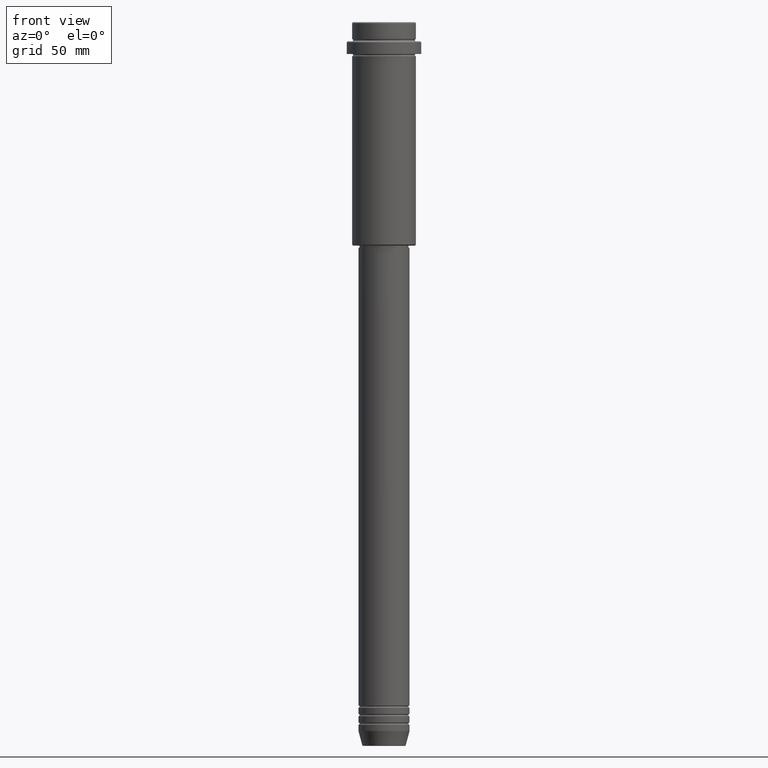
[diagram: clean part render]
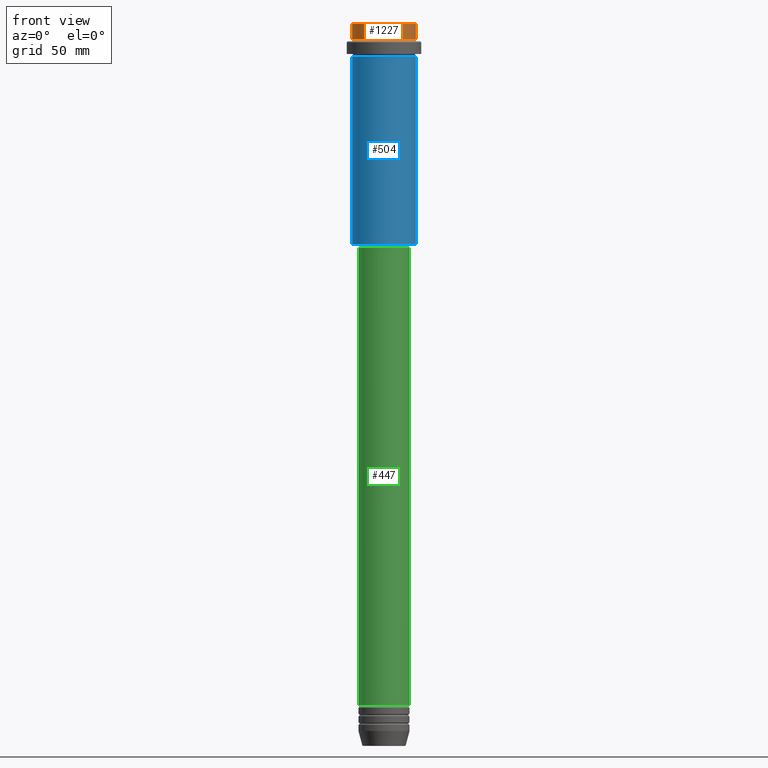
[diagram: same view with three faces highlighted in distinct colors, each labeled with its STEP entity id]
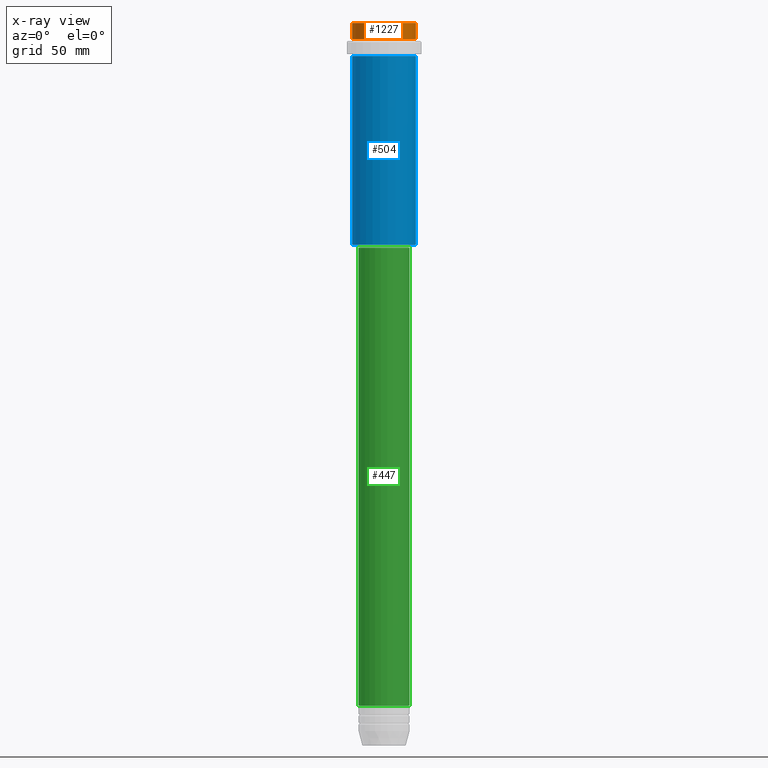
[diagram: x-ray of the same camera — body ghosted, the three highlighted faces saturated]
A machine part, front view with three faces highlighted in distinct colors.
The next image is the same camera in x-ray (body ghosted, the three faces saturated) — at least one of them is partly hidden behind the body in this view.
Their STEP definitions:

[orange] entity #1227 — the highlighted cylindrical surface (edge-blend (fillet) strip) has radius 15 mm, axis along (-0, -0, 1).
#3 = DIRECTION ( 'NONE',  ( 1.000000000000000000, 0.000000000000000000, 0.000000000000000000 ) ) ;
#16 = EDGE_CURVE ( 'NONE', #390, #327, #1345, .T. ) ;
#25 = VERTEX_POINT ( 'NONE', #153 ) ;
#126 = DIRECTION ( 'NONE',  ( 0.000000000000000000, 0.000000000000000000, -1.000000000000000000 ) ) ;
#136 = VECTOR ( 'NONE', #1139, 1000.000000000000000 ) ;
#153 = CARTESIAN_POINT ( 'NONE',  ( -15.00000000000000000, 1.836970198721029589E-15, -0.5000000000000107692 ) ) ;
#169 = CARTESIAN_POINT ( 'NONE',  ( 0.000000000000000000, 0.000000000000000000, -7.999999999999998224 ) ) ;
#216 = VECTOR ( 'NONE', #1366, 1000.000000000000000 ) ;
#238 = AXIS2_PLACEMENT_3D ( 'NONE', #472, #126, #587 ) ;
#327 = VERTEX_POINT ( 'NONE', #331 ) ;
#331 = CARTESIAN_POINT ( 'NONE',  ( 15.00000000000000000, 0.000000000000000000, -0.5000000000000107692 ) ) ;
#365 = CARTESIAN_POINT ( 'NONE',  ( 15.00000000000000000, 0.000000000000000000, 0.000000000000000000 ) ) ;
#390 = VERTEX_POINT ( 'NONE', #781 ) ;
#423 = CARTESIAN_POINT ( 'NONE',  ( 0.000000000000000000, 0.000000000000000000, 0.000000000000000000 ) ) ;
#472 = CARTESIAN_POINT ( 'NONE',  ( 0.000000000000000000, 0.000000000000000000, -0.5000000000000107692 ) ) ;
#515 = VERTEX_POINT ( 'NONE', #579 ) ;
#520 = DIRECTION ( 'NONE',  ( -0.000000000000000000, -0.000000000000000000, 1.000000000000000000 ) ) ;
#530 = ORIENTED_EDGE ( 'NONE', *, *, #16, .T. ) ;
#544 = FACE_OUTER_BOUND ( 'NONE', #1337, .T. ) ;
#557 = AXIS2_PLACEMENT_3D ( 'NONE', #169, #520, #622 ) ;
#579 = CARTESIAN_POINT ( 'NONE',  ( -15.00000000000000000, 1.836970198721029589E-15, -7.999999999999998224 ) ) ;
#587 = DIRECTION ( 'NONE',  ( 1.000000000000000000, 0.000000000000000000, 0.000000000000000000 ) ) ;
#622 = DIRECTION ( 'NONE',  ( 1.000000000000000000, 0.000000000000000000, 0.000000000000000000 ) ) ;
#655 = EDGE_CURVE ( 'NONE', #515, #25, #1256, .T. ) ;
#657 = ORIENTED_EDGE ( 'NONE', *, *, #892, .T. ) ;
#679 = EDGE_CURVE ( 'NONE', #515, #390, #923, .T. ) ;
#682 = ORIENTED_EDGE ( 'NONE', *, *, #679, .T. ) ;
#781 = CARTESIAN_POINT ( 'NONE',  ( 15.00000000000000000, 0.000000000000000000, -7.999999999999998224 ) ) ;
#856 = CIRCLE ( 'NONE', #238, 15.00000000000000000 ) ;
#892 = EDGE_CURVE ( 'NONE', #327, #25, #856, .T. ) ;
#923 = CIRCLE ( 'NONE', #557, 15.00000000000000000 ) ;
#926 = AXIS2_PLACEMENT_3D ( 'NONE', #423, #1072, #3 ) ;
#934 = CARTESIAN_POINT ( 'NONE',  ( -15.00000000000000000, 1.836970198721029589E-15, 0.000000000000000000 ) ) ;
#975 = CYLINDRICAL_SURFACE ( 'NONE', #926, 15.00000000000000000 ) ;
#1072 = DIRECTION ( 'NONE',  ( -0.000000000000000000, -0.000000000000000000, 1.000000000000000000 ) ) ;
#1139 = DIRECTION ( 'NONE',  ( -0.000000000000000000, -0.000000000000000000, 1.000000000000000000 ) ) ;
#1207 = ORIENTED_EDGE ( 'NONE', *, *, #655, .F. ) ;
#1227 = ADVANCED_FACE ( 'NONE', ( #544 ), #975, .T. ) ;
#1256 = LINE ( 'NONE', #934, #216 ) ;
#1337 = EDGE_LOOP ( 'NONE', ( #1207, #682, #530, #657 ) ) ;
#1345 = LINE ( 'NONE', #365, #136 ) ;
#1366 = DIRECTION ( 'NONE',  ( -0.000000000000000000, -0.000000000000000000, 1.000000000000000000 ) ) ;

[blue] entity #504 — the highlighted cylindrical surface (edge-blend (fillet) strip) has radius 15 mm, axis along (-0, -0, 1).
#13 = CARTESIAN_POINT ( 'NONE',  ( 15.00000000000000000, 0.000000000000000000, -104.5000000000000426 ) ) ;
#79 = AXIS2_PLACEMENT_3D ( 'NONE', #119, #1087, #558 ) ;
#119 = CARTESIAN_POINT ( 'NONE',  ( 0.000000000000000000, 0.000000000000000000, -16.00000000000000000 ) ) ;
#120 = AXIS2_PLACEMENT_3D ( 'NONE', #1114, #1228, #1002 ) ;
#159 = CARTESIAN_POINT ( 'NONE',  ( 0.000000000000000000, 0.000000000000000000, -104.5000000000000426 ) ) ;
#227 = LINE ( 'NONE', #662, #1267 ) ;
#228 = ORIENTED_EDGE ( 'NONE', *, *, #609, .T. ) ;
#273 = CARTESIAN_POINT ( 'NONE',  ( 15.00000000000000178, 0.000000000000000000, -16.00000000000000000 ) ) ;
#336 = CARTESIAN_POINT ( 'NONE',  ( 15.00000000000000000, 0.000000000000000000, 0.000000000000000000 ) ) ;
#405 = DIRECTION ( 'NONE',  ( -0.000000000000000000, -0.000000000000000000, 1.000000000000000000 ) ) ;
#504 = ADVANCED_FACE ( 'NONE', ( #567 ), #807, .T. ) ;
#512 = CIRCLE ( 'NONE', #79, 15.00000000000000178 ) ;
#558 = DIRECTION ( 'NONE',  ( 1.000000000000000000, 0.000000000000000000, 0.000000000000000000 ) ) ;
#564 = VERTEX_POINT ( 'NONE', #273 ) ;
#567 = FACE_OUTER_BOUND ( 'NONE', #1005, .T. ) ;
#609 = EDGE_CURVE ( 'NONE', #1243, #1295, #1287, .T. ) ;
#644 = LINE ( 'NONE', #336, #1012 ) ;
#662 = CARTESIAN_POINT ( 'NONE',  ( -15.00000000000000000, 1.836970198721029589E-15, 0.000000000000000000 ) ) ;
#757 = EDGE_CURVE ( 'NONE', #1295, #564, #644, .T. ) ;
#766 = DIRECTION ( 'NONE',  ( -0.000000000000000000, -0.000000000000000000, 1.000000000000000000 ) ) ;
#807 = CYLINDRICAL_SURFACE ( 'NONE', #120, 15.00000000000000000 ) ;
#841 = EDGE_CURVE ( 'NONE', #1314, #564, #512, .T. ) ;
#842 = DIRECTION ( 'NONE',  ( -1.000000000000000000, 0.000000000000000000, 0.000000000000000000 ) ) ;
#851 = ORIENTED_EDGE ( 'NONE', *, *, #1293, .F. ) ;
#887 = DIRECTION ( 'NONE',  ( -0.000000000000000000, -0.000000000000000000, 1.000000000000000000 ) ) ;
#1002 = DIRECTION ( 'NONE',  ( 1.000000000000000000, 0.000000000000000000, 0.000000000000000000 ) ) ;
#1005 = EDGE_LOOP ( 'NONE', ( #851, #228, #1140, #1091 ) ) ;
#1012 = VECTOR ( 'NONE', #766, 1000.000000000000000 ) ;
#1087 = DIRECTION ( 'NONE',  ( -0.000000000000000000, -0.000000000000000000, 1.000000000000000000 ) ) ;
#1091 = ORIENTED_EDGE ( 'NONE', *, *, #841, .F. ) ;
#1114 = CARTESIAN_POINT ( 'NONE',  ( 0.000000000000000000, 0.000000000000000000, 0.000000000000000000 ) ) ;
#1119 = AXIS2_PLACEMENT_3D ( 'NONE', #159, #405, #842 ) ;
#1137 = CARTESIAN_POINT ( 'NONE',  ( -15.00000000000000355, 1.836970198721029983E-15, -16.00000000000000000 ) ) ;
#1140 = ORIENTED_EDGE ( 'NONE', *, *, #757, .T. ) ;
#1228 = DIRECTION ( 'NONE',  ( -0.000000000000000000, -0.000000000000000000, 1.000000000000000000 ) ) ;
#1243 = VERTEX_POINT ( 'NONE', #1416 ) ;
#1267 = VECTOR ( 'NONE', #887, 1000.000000000000000 ) ;
#1287 = CIRCLE ( 'NONE', #1119, 15.00000000000000000 ) ;
#1293 = EDGE_CURVE ( 'NONE', #1243, #1314, #227, .T. ) ;
#1295 = VERTEX_POINT ( 'NONE', #13 ) ;
#1314 = VERTEX_POINT ( 'NONE', #1137 ) ;
#1416 = CARTESIAN_POINT ( 'NONE',  ( -15.00000000000000000, 1.836970198721029589E-15, -104.5000000000000426 ) ) ;

[green] entity #447 — the highlighted cylindrical surface (edge-blend (fillet) strip) has radius 12 mm, axis along (-0, -0, 1).
#5 = DIRECTION ( 'NONE',  ( 1.000000000000000000, 0.000000000000000000, 0.000000000000000000 ) ) ;
#38 = VERTEX_POINT ( 'NONE', #1224 ) ;
#41 = CYLINDRICAL_SURFACE ( 'NONE', #555, 12.00000000000000000 ) ;
#47 = CARTESIAN_POINT ( 'NONE',  ( 0.000000000000000000, 0.000000000000000000, 0.000000000000000000 ) ) ;
#117 = EDGE_CURVE ( 'NONE', #914, #900, #1290, .T. ) ;
#125 = ORIENTED_EDGE ( 'NONE', *, *, #358, .T. ) ;
#195 = CARTESIAN_POINT ( 'NONE',  ( -11.99999999999999822, 1.469576158976823750E-15, -105.9999999999999574 ) ) ;
#230 = DIRECTION ( 'NONE',  ( -0.000000000000000000, -0.000000000000000000, 1.000000000000000000 ) ) ;
#309 = AXIS2_PLACEMENT_3D ( 'NONE', #653, #982, #5 ) ;
#358 = EDGE_CURVE ( 'NONE', #38, #914, #578, .T. ) ;
#369 = VECTOR ( 'NONE', #521, 1000.000000000000000 ) ;
#379 = DIRECTION ( 'NONE',  ( -0.000000000000000000, -0.000000000000000000, 1.000000000000000000 ) ) ;
#416 = ORIENTED_EDGE ( 'NONE', *, *, #784, .F. ) ;
#433 = CARTESIAN_POINT ( 'NONE',  ( 0.000000000000000000, 0.000000000000000000, -320.9999999999998863 ) ) ;
#447 = ADVANCED_FACE ( 'NONE', ( #1242 ), #41, .T. ) ;
#466 = DIRECTION ( 'NONE',  ( 1.000000000000000000, 0.000000000000000000, 0.000000000000000000 ) ) ;
#521 = DIRECTION ( 'NONE',  ( -0.000000000000000000, -0.000000000000000000, 1.000000000000000000 ) ) ;
#555 = AXIS2_PLACEMENT_3D ( 'NONE', #47, #379, #466 ) ;
#563 = ORIENTED_EDGE ( 'NONE', *, *, #661, .F. ) ;
#578 = CIRCLE ( 'NONE', #855, 12.00000000000000000 ) ;
#653 = CARTESIAN_POINT ( 'NONE',  ( 0.000000000000000000, 0.000000000000000000, -105.9999999999999574 ) ) ;
#661 = EDGE_CURVE ( 'NONE', #38, #666, #729, .T. ) ;
#666 = VERTEX_POINT ( 'NONE', #195 ) ;
#671 = VECTOR ( 'NONE', #1280, 1000.000000000000000 ) ;
#691 = CIRCLE ( 'NONE', #309, 11.99999999999999822 ) ;
#697 = CARTESIAN_POINT ( 'NONE',  ( 12.00000000000000000, 0.000000000000000000, -320.9999999999998863 ) ) ;
#729 = LINE ( 'NONE', #1374, #671 ) ;
#747 = CARTESIAN_POINT ( 'NONE',  ( 12.00000000000000000, 0.000000000000000000, 0.000000000000000000 ) ) ;
#784 = EDGE_CURVE ( 'NONE', #666, #900, #691, .T. ) ;
#855 = AXIS2_PLACEMENT_3D ( 'NONE', #433, #230, #1088 ) ;
#900 = VERTEX_POINT ( 'NONE', #1107 ) ;
#914 = VERTEX_POINT ( 'NONE', #697 ) ;
#944 = ORIENTED_EDGE ( 'NONE', *, *, #117, .T. ) ;
#982 = DIRECTION ( 'NONE',  ( -0.000000000000000000, -0.000000000000000000, 1.000000000000000000 ) ) ;
#1071 = EDGE_LOOP ( 'NONE', ( #563, #125, #944, #416 ) ) ;
#1088 = DIRECTION ( 'NONE',  ( 1.000000000000000000, 0.000000000000000000, 0.000000000000000000 ) ) ;
#1107 = CARTESIAN_POINT ( 'NONE',  ( 11.99999999999999822, 0.000000000000000000, -105.9999999999999574 ) ) ;
#1224 = CARTESIAN_POINT ( 'NONE',  ( -12.00000000000000000, 1.469576158976823947E-15, -320.9999999999998863 ) ) ;
#1242 = FACE_OUTER_BOUND ( 'NONE', #1071, .T. ) ;
#1280 = DIRECTION ( 'NONE',  ( -0.000000000000000000, -0.000000000000000000, 1.000000000000000000 ) ) ;
#1290 = LINE ( 'NONE', #747, #369 ) ;
#1374 = CARTESIAN_POINT ( 'NONE',  ( -12.00000000000000000, 1.469576158976823947E-15, 0.000000000000000000 ) ) ;